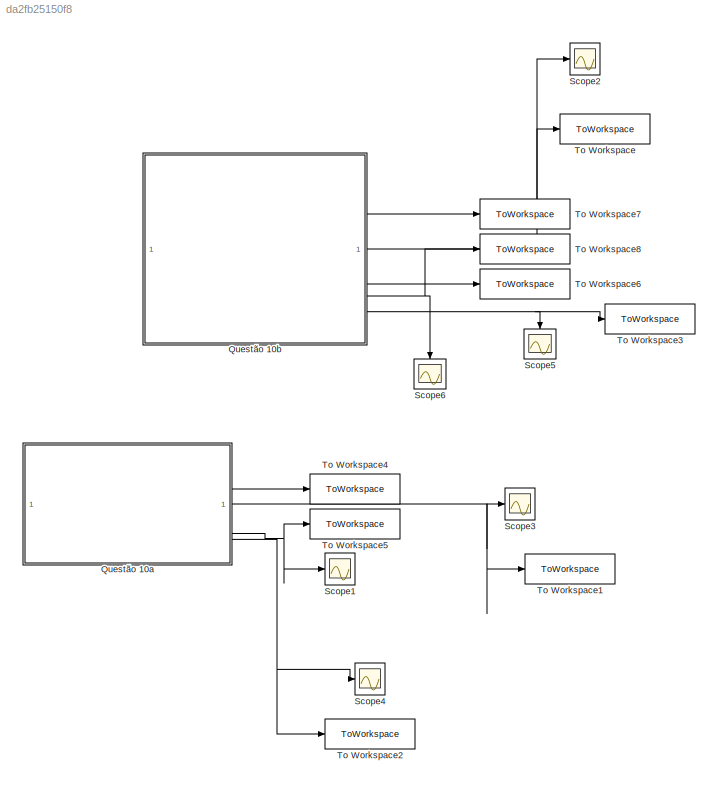
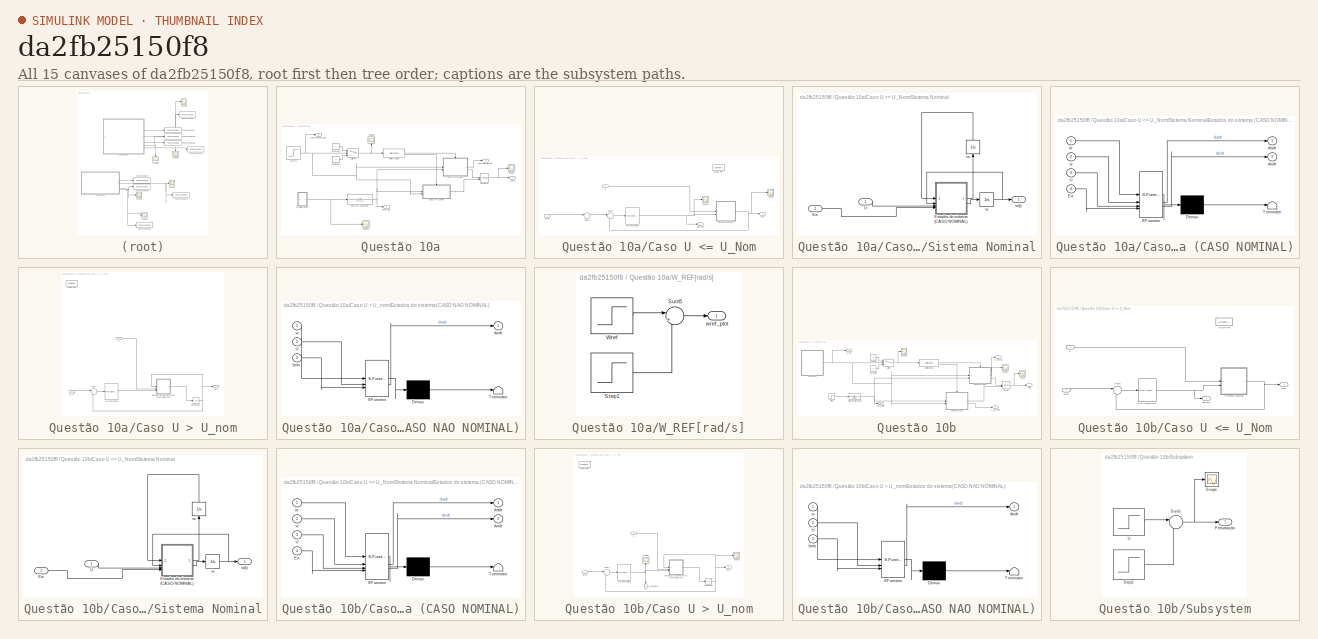
[diagram: thumbnail index - all 15 canvases of the model, root first then tree order]
MODEL slx_da2fb25150f8
KIND model
CONFIG AbsTol = auto
CONFIG EnableMultiTasking = off
CONFIG FixedStep = auto
CONFIG MaxStep = auto
CONFIG MinStep = auto
CONFIG RelTol = 1e-3
CONFIG SampleTimeConstraint = Unconstrained
CONFIG SolverName = VariableStepAuto
CONFIG StartTime = 0.0
CONFIG StopTime = 60
BLOCK [SubSystem] Questão 10a
BLOCK [SubSystem] Questão 10a/Caso U <= U_Nom
  TreatAsAtomicUnit = on
BLOCK [ActionPort] Questão 10a/Caso U <= U_Nom/Action Port
  ActionPortLabel = case [ 0 ]:
BLOCK [Outport] Questão 10a/Caso U <= U_Nom/Out1
  Port = 2
BLOCK [Reference] Questão 10a/Caso U <= U_Nom/PID Controller1  REF=slpidlib/PID Controller
  LibrarySourceBlock = simulink/Continuous/PID Controller
  SourceBlock = slpidlib/PID Controller
  SourceType = PID 1dof
BLOCK [Scope] Questão 10a/Caso U <= U_Nom/Scope
  Floating = off
  NumInputPorts = 1
  ScopeSpecificationString = Simulink.scopes.TimeScopeBlockCfg('CurrentConfiguration', extmgr.ConfigurationSet(extmgr.Configuration('Core','General UI',true),extmgr.Configuration('Core','Source UI',true),extmgr.Configuration('Sources','WiredSimulink',true,'DataLoggingVariableName','ScopeData2'),extmgr.Configuration('Visuals','Time Domain',true,'SerializedDisplays',{struct('MinYLimReal','-0.1315','MaxYLimReal','1.18351','YLabe...<+1372ch>
BLOCK [Scope] Questão 10a/Caso U <= U_Nom/Scope1
  Floating = off
  NumInputPorts = 1
  ScopeSpecificationString = Simulink.scopes.TimeScopeBlockCfg('CurrentConfiguration', extmgr.ConfigurationSet(extmgr.Configuration('Core','General UI',true),extmgr.Configuration('Core','Source UI',true),extmgr.Configuration('Sources','WiredSimulink',true,'DataLoggingVariableName','ScopeData3'),extmgr.Configuration('Visuals','Time Domain',true,'SerializedDisplays',{struct('MinYLimReal','-204.63112','MaxYLimReal','1841.68008',...<+1392ch>
BLOCK [SubSystem] Questão 10a/Caso U <= U_Nom/Sistema Nominal
BLOCK [Inport] Questão 10a/Caso U <= U_Nom/Sistema Nominal/Ea
  Port = 2
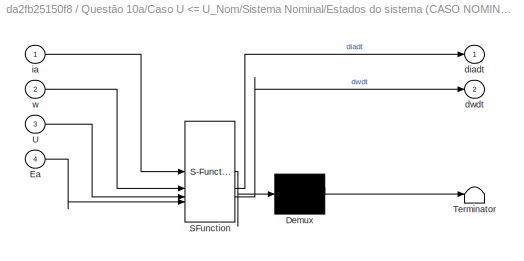
BLOCK [SubSystem] Questão 10a/Caso U <= U_Nom/Sistema Nominal/Estados do sistema (CASO NOMINAL)
  ErrorFcn = Stateflow.Translate.translate
  LibrarySourceBlock = simulink/User-Defined\nFunctions/MATLAB Function
  PermitHierarchicalResolution = ExplicitOnly
  SFBlockType = MATLAB Function
  TreatAsAtomicUnit = on
BLOCK [Demux] Questão 10a/Caso U <= U_Nom/Sistema Nominal/Estados do sistema (CASO NOMINAL)/ Demux 
  Outputs = 1
BLOCK [S-Function] Questão 10a/Caso U <= U_Nom/Sistema Nominal/Estados do sistema (CASO NOMINAL)/ SFunction 
  EnableBusSupport = on
  FunctionName = sf_sfun
  Parameters = A,Cpmax0,J,La,Ra,b,kv,rho
  PortCounts = [4 3]
  SFcnIsStateOwnerBlock = off
  SFunctionDeploymentMode = off
  Tag = Stateflow S-Function 6
BLOCK [Terminator] Questão 10a/Caso U <= U_Nom/Sistema Nominal/Estados do sistema (CASO NOMINAL)/ Terminator 
BLOCK [Inport] Questão 10a/Caso U <= U_Nom/Sistema Nominal/Estados do sistema (CASO NOMINAL)/Ea
  Port = 4
BLOCK [Inport] Questão 10a/Caso U <= U_Nom/Sistema Nominal/Estados do sistema (CASO NOMINAL)/U
  Port = 3
BLOCK [Outport] Questão 10a/Caso U <= U_Nom/Sistema Nominal/Estados do sistema (CASO NOMINAL)/diadt
BLOCK [Outport] Questão 10a/Caso U <= U_Nom/Sistema Nominal/Estados do sistema (CASO NOMINAL)/dwdt
  Port = 2
BLOCK [Inport] Questão 10a/Caso U <= U_Nom/Sistema Nominal/Estados do sistema (CASO NOMINAL)/ia
BLOCK [Inport] Questão 10a/Caso U <= U_Nom/Sistema Nominal/Estados do sistema (CASO NOMINAL)/w
  Port = 2
BLOCK [Inport] Questão 10a/Caso U <= U_Nom/Sistema Nominal/U
BLOCK [Integrator] Questão 10a/Caso U <= U_Nom/Sistema Nominal/ia
  InitialCondition = 1
  NameLocation = right
BLOCK [Integrator] Questão 10a/Caso U <= U_Nom/Sistema Nominal/w
  InitialCondition = 0.000000000000000000001
BLOCK [Outport] Questão 10a/Caso U <= U_Nom/Sistema Nominal/w(t)
BLOCK [Sum] Questão 10a/Caso U <= U_Nom/Sum2
  Inputs = |++
BLOCK [Sum] Questão 10a/Caso U <= U_Nom/Sum3
  Inputs = |+-
BLOCK [Inport] Questão 10a/Caso U <= U_Nom/U
BLOCK [Inport] Questão 10a/Caso U <= U_Nom/Wref
  Port = 2
BLOCK [Outport] Questão 10a/Caso U <= U_Nom/controle
BLOCK [SubSystem] Questão 10a/Caso U > U_nom
  TreatAsAtomicUnit = on
BLOCK [ActionPort] Questão 10a/Caso U > U_nom/Action Port
  ActionPortLabel = case [ 1 ]:
BLOCK [SubSystem] Questão 10a/Caso U > U_nom/Estados do sistema(CASO NAO NOMINAL)
  ErrorFcn = Stateflow.Translate.translate
  LibrarySourceBlock = simulink/User-Defined\nFunctions/MATLAB Function
  PermitHierarchicalResolution = ExplicitOnly
  SFBlockType = MATLAB Function
  TreatAsAtomicUnit = on
BLOCK [Demux] Questão 10a/Caso U > U_nom/Estados do sistema(CASO NAO NOMINAL)/ Demux 
  Outputs = 1
BLOCK [S-Function] Questão 10a/Caso U > U_nom/Estados do sistema(CASO NAO NOMINAL)/ SFunction 
  EnableBusSupport = on
  FunctionName = sf_sfun
  Parameters = A,J,b,ia_nom,kv,lambdaopt,rho
  PortCounts = [3 2]
  SFcnIsStateOwnerBlock = off
  SFunctionDeploymentMode = off
  Tag = Stateflow S-Function 7
BLOCK [Terminator] Questão 10a/Caso U > U_nom/Estados do sistema(CASO NAO NOMINAL)/ Terminator 
BLOCK [Inport] Questão 10a/Caso U > U_nom/Estados do sistema(CASO NAO NOMINAL)/U
  Port = 2
BLOCK [Inport] Questão 10a/Caso U > U_nom/Estados do sistema(CASO NAO NOMINAL)/beta
  Port = 3
BLOCK [Outport] Questão 10a/Caso U > U_nom/Estados do sistema(CASO NAO NOMINAL)/dwdt
BLOCK [Inport] Questão 10a/Caso U > U_nom/Estados do sistema(CASO NAO NOMINAL)/w
BLOCK [Outport] Questão 10a/Caso U > U_nom/Out1
BLOCK [Reference] Questão 10a/Caso U > U_nom/PID Controller2  REF=slpidlib/PID Controller
  LibrarySourceBlock = simulink/Continuous/PID Controller
  SourceBlock = slpidlib/PID Controller
  SourceType = PID 1dof
BLOCK [Sum] Questão 10a/Caso U > U_nom/Sum1
  Inputs = |+-
BLOCK [Inport] Questão 10a/Caso U > U_nom/U
  Port = 2
BLOCK [Inport] Questão 10a/Caso U > U_nom/Wref
BLOCK [Integrator] Questão 10a/Caso U > U_nom/integrador
  InitialCondition = w_nom
BLOCK [Constant] Questão 10a/Constant1
BLOCK [Constant] Questão 10a/Constant2
  Value = 0
BLOCK [TransferFcn] Questão 10a/Filtro de referência
  Denominator = [0.9 1]
BLOCK [Outport] Questão 10a/Out2
BLOCK [Scope] Questão 10a/Scope
  Floating = off
  NumInputPorts = 1
  ScopeSpecificationString = Simulink.scopes.TimeScopeBlockCfg('CurrentConfiguration', extmgr.ConfigurationSet(extmgr.Configuration('Core','General UI',true),extmgr.Configuration('Core','Source UI',true),extmgr.Configuration('Sources','WiredSimulink',true,'DataLoggingVariableName','ScopeData6'),extmgr.Configuration('Visuals','Time Domain',true,'SerializedDisplays',{struct('MinYLimReal','-0.1315','MaxYLimReal','1.18351','YLabe...<+1365ch>
BLOCK [Scope] Questão 10a/Scope1
  Floating = off
  NumInputPorts = 1
  ScopeSpecificationString = Simulink.scopes.TimeScopeBlockCfg('CurrentConfiguration', extmgr.ConfigurationSet(extmgr.Configuration('Core','General UI',true),extmgr.Configuration('Core','Source UI',true),extmgr.Configuration('Sources','WiredSimulink',true,'DataLoggingVariableName','ScopeData6'),extmgr.Configuration('Visuals','Time Domain',true,'SerializedDisplays',{struct('MinYLimReal','0.46025','MaxYLimReal','1.11775','YLabe...<+1431ch>
BLOCK [Scope] Questão 10a/Scope3
  Floating = off
  NameLocation = right
  NumInputPorts = 1
  ScopeSpecificationString = Simulink.scopes.TimeScopeBlockCfg('CurrentConfiguration', extmgr.ConfigurationSet(extmgr.Configuration('Core','General UI',true),extmgr.Configuration('Core','Source UI',true),extmgr.Configuration('Sources','WiredSimulink',true,'DataLoggingVariableName','ScopeData1'),extmgr.Configuration('Visuals','Time Domain',true,'SerializedDisplays',{struct('MinYLimReal','-1.00000','MaxYLimReal','1.00000','YLab...<+1429ch>
BLOCK [Switch] Questão 10a/Switch
  Criteria = u2 > Threshold
  InputSameDT = off
  SaturateOnIntegerOverflow = off
  Threshold = U_nom
BLOCK [SwitchCase] Questão 10a/Switch Case 
  CaseConditions = {0, [1]}
  ShowDefaultCase = off
BLOCK [Step] Questão 10a/U[m//s]
  After = U_nom
  Before = U_nom
  SampleTime = 0
  Time = 50
BLOCK [SubSystem] Questão 10a/W_REF[rad//s]
BLOCK [Step] Questão 10a/W_REF[rad//s]/Step1
  After = w_nom/2
  SampleTime = 0
  Time = 40
BLOCK [Sum] Questão 10a/W_REF[rad//s]/Sum5
  Inputs = |++
BLOCK [Step] Questão 10a/W_REF[rad//s]/Wref
  After = w_nom/2
  Before = w_nom
  SampleTime = 0
  Time = 20
BLOCK [Outport] Questão 10a/W_REF[rad//s]/wref_plot
BLOCK [Outport] Questão 10a/controle_plot10a
  Port = 3
BLOCK [Outport] Questão 10a/perturbação_10a
  Port = 2
BLOCK [Merge] Questão 10a/w[rad//s]
BLOCK [Outport] Questão 10a/wref_plot
  Port = 4
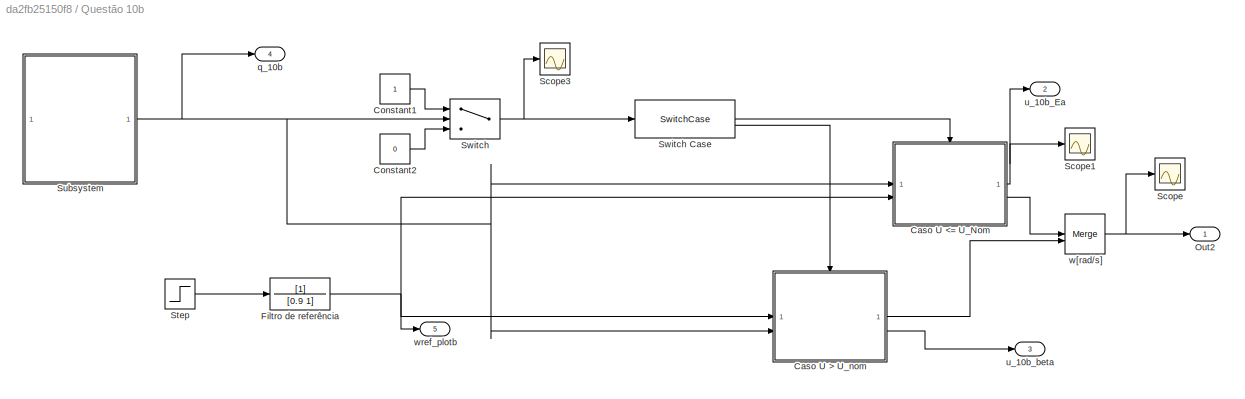
BLOCK [SubSystem] Questão 10b
BLOCK [SubSystem] Questão 10b/Caso U <= U_Nom
  TreatAsAtomicUnit = on
BLOCK [ActionPort] Questão 10b/Caso U <= U_Nom/Action Port
  ActionPortLabel = case [ 0 ]:
BLOCK [Outport] Questão 10b/Caso U <= U_Nom/Out1
  Port = 2
BLOCK [Reference] Questão 10b/Caso U <= U_Nom/PID Controller1  REF=slpidlib/PID Controller
  LibrarySourceBlock = simulink/Continuous/PID Controller
  SourceBlock = slpidlib/PID Controller
  SourceType = PID 1dof
BLOCK [SubSystem] Questão 10b/Caso U <= U_Nom/Sistema Nominal
BLOCK [Inport] Questão 10b/Caso U <= U_Nom/Sistema Nominal/Ea
  Port = 2
BLOCK [SubSystem] Questão 10b/Caso U <= U_Nom/Sistema Nominal/Estados do sistema (CASO NOMINAL)
  ErrorFcn = Stateflow.Translate.translate
  LibrarySourceBlock = simulink/User-Defined\nFunctions/MATLAB Function
  PermitHierarchicalResolution = ExplicitOnly
  SFBlockType = MATLAB Function
  TreatAsAtomicUnit = on
BLOCK [Demux] Questão 10b/Caso U <= U_Nom/Sistema Nominal/Estados do sistema (CASO NOMINAL)/ Demux 
  Outputs = 1
BLOCK [S-Function] Questão 10b/Caso U <= U_Nom/Sistema Nominal/Estados do sistema (CASO NOMINAL)/ SFunction 
  EnableBusSupport = on
  FunctionName = sf_sfun
  Parameters = A,Cpmax0,J,La,Ra,b,kv,rho
  PortCounts = [4 3]
  SFcnIsStateOwnerBlock = off
  SFunctionDeploymentMode = off
  Tag = Stateflow S-Function 3
BLOCK [Terminator] Questão 10b/Caso U <= U_Nom/Sistema Nominal/Estados do sistema (CASO NOMINAL)/ Terminator 
BLOCK [Inport] Questão 10b/Caso U <= U_Nom/Sistema Nominal/Estados do sistema (CASO NOMINAL)/Ea
  Port = 4
BLOCK [Inport] Questão 10b/Caso U <= U_Nom/Sistema Nominal/Estados do sistema (CASO NOMINAL)/U
  Port = 3
BLOCK [Outport] Questão 10b/Caso U <= U_Nom/Sistema Nominal/Estados do sistema (CASO NOMINAL)/diadt
BLOCK [Outport] Questão 10b/Caso U <= U_Nom/Sistema Nominal/Estados do sistema (CASO NOMINAL)/dwdt
  Port = 2
BLOCK [Inport] Questão 10b/Caso U <= U_Nom/Sistema Nominal/Estados do sistema (CASO NOMINAL)/ia
BLOCK [Inport] Questão 10b/Caso U <= U_Nom/Sistema Nominal/Estados do sistema (CASO NOMINAL)/w
  Port = 2
BLOCK [Inport] Questão 10b/Caso U <= U_Nom/Sistema Nominal/U
BLOCK [Integrator] Questão 10b/Caso U <= U_Nom/Sistema Nominal/ia
  InitialCondition = 1
  NameLocation = right
BLOCK [Integrator] Questão 10b/Caso U <= U_Nom/Sistema Nominal/w
  InitialCondition = 0.000000000000000000001
BLOCK [Outport] Questão 10b/Caso U <= U_Nom/Sistema Nominal/w(t)
BLOCK [Sum] Questão 10b/Caso U <= U_Nom/Sum3
  Inputs = |+-
BLOCK [Inport] Questão 10b/Caso U <= U_Nom/U
BLOCK [Inport] Questão 10b/Caso U <= U_Nom/Wref
  Port = 2
BLOCK [Outport] Questão 10b/Caso U <= U_Nom/controle
BLOCK [SubSystem] Questão 10b/Caso U > U_nom
  TreatAsAtomicUnit = on
BLOCK [ActionPort] Questão 10b/Caso U > U_nom/Action Port
  ActionPortLabel = case [ 1 ]:
BLOCK [SubSystem] Questão 10b/Caso U > U_nom/Estados do sistema(CASO NAO NOMINAL)
  ErrorFcn = Stateflow.Translate.translate
  LibrarySourceBlock = simulink/User-Defined\nFunctions/MATLAB Function
  PermitHierarchicalResolution = ExplicitOnly
  SFBlockType = MATLAB Function
  TreatAsAtomicUnit = on
BLOCK [Demux] Questão 10b/Caso U > U_nom/Estados do sistema(CASO NAO NOMINAL)/ Demux 
  Outputs = 1
BLOCK [S-Function] Questão 10b/Caso U > U_nom/Estados do sistema(CASO NAO NOMINAL)/ SFunction 
  EnableBusSupport = on
  FunctionName = sf_sfun
  Parameters = A,J,b,ia_nom,kv,lambdaopt,rho
  PortCounts = [3 2]
  SFcnIsStateOwnerBlock = off
  SFunctionDeploymentMode = off
  Tag = Stateflow S-Function 5
BLOCK [Terminator] Questão 10b/Caso U > U_nom/Estados do sistema(CASO NAO NOMINAL)/ Terminator 
BLOCK [Inport] Questão 10b/Caso U > U_nom/Estados do sistema(CASO NAO NOMINAL)/U
  Port = 2
BLOCK [Inport] Questão 10b/Caso U > U_nom/Estados do sistema(CASO NAO NOMINAL)/beta
  Port = 3
BLOCK [Outport] Questão 10b/Caso U > U_nom/Estados do sistema(CASO NAO NOMINAL)/dwdt
BLOCK [Inport] Questão 10b/Caso U > U_nom/Estados do sistema(CASO NAO NOMINAL)/w
BLOCK [Outport] Questão 10b/Caso U > U_nom/Out1
BLOCK [Reference] Questão 10b/Caso U > U_nom/PID Controller2  REF=slpidlib/PID Controller
  LibrarySourceBlock = simulink/Continuous/PID Controller
  SourceBlock = slpidlib/PID Controller
  SourceType = PID 1dof
BLOCK [Scope] Questão 10b/Caso U > U_nom/Scope
  Floating = off
  NumInputPorts = 1
  ScopeSpecificationString = Simulink.scopes.TimeScopeBlockCfg('CurrentConfiguration', extmgr.ConfigurationSet(extmgr.Configuration('Core','General UI',true),extmgr.Configuration('Core','Source UI',true),extmgr.Configuration('Sources','WiredSimulink',true,'DataLoggingVariableName','ScopeData4'),extmgr.Configuration('Visuals','Time Domain',true,'SerializedDisplays',{struct('MinYLimReal','0.97302','MaxYLimReal','1.33436','YLabe...<+1367ch>
BLOCK [Scope] Questão 10b/Caso U > U_nom/Scope1
  Floating = off
  NameLocation = right
  NumInputPorts = 1
  ScopeSpecificationString = Simulink.scopes.TimeScopeBlockCfg('CurrentConfiguration', extmgr.ConfigurationSet(extmgr.Configuration('Core','General UI',true),extmgr.Configuration('Core','Source UI',true),extmgr.Configuration('Sources','WiredSimulink',true,'DataLoggingVariableName','ScopeData5'),extmgr.Configuration('Visuals','Time Domain',true,'SerializedDisplays',{struct('MinYLimReal','-0.036','MaxYLimReal','0.32403','YLabel...<+1689ch>
BLOCK [Sum] Questão 10b/Caso U > U_nom/Sum1
  Inputs = |+-
BLOCK [Inport] Questão 10b/Caso U > U_nom/U
  Port = 2
BLOCK [Inport] Questão 10b/Caso U > U_nom/Wref
BLOCK [Integrator] Questão 10b/Caso U > U_nom/integrador
  InitialCondition = w_nom
BLOCK [Outport] Questão 10b/Caso U > U_nom/u_10b_beta
  NameLocation = left
  Port = 2
BLOCK [Constant] Questão 10b/Constant1
BLOCK [Constant] Questão 10b/Constant2
  Value = 0
BLOCK [TransferFcn] Questão 10b/Filtro de referência
  Denominator = [0.9 1]
BLOCK [Outport] Questão 10b/Out2
BLOCK [Scope] Questão 10b/Scope
  Floating = off
  NumInputPorts = 1
  ScopeSpecificationString = Simulink.scopes.TimeScopeBlockCfg('CurrentConfiguration', extmgr.ConfigurationSet(extmgr.Configuration('Core','General UI',true),extmgr.Configuration('Core','Source UI',true),extmgr.Configuration('Sources','WiredSimulink',true,'DataLoggingVariableName','ScopeData4'),extmgr.Configuration('Visuals','Time Domain',true,'SerializedDisplays',{struct('MinYLimReal','-0.1623','MaxYLimReal','1.46074','YLabe...<+1365ch>
BLOCK [Scope] Questão 10b/Scope1
  Floating = off
  NumInputPorts = 1
  ScopeSpecificationString = Simulink.scopes.TimeScopeBlockCfg('CurrentConfiguration', extmgr.ConfigurationSet(extmgr.Configuration('Core','General UI',true),extmgr.Configuration('Core','Source UI',true),extmgr.Configuration('Sources','WiredSimulink',true,'DataLoggingVariableName','ScopeData4'),extmgr.Configuration('Visuals','Time Domain',true,'SerializedDisplays',{struct('MinYLimReal','-250.00000','MaxYLimReal','2250.00000',...<+1767ch>
BLOCK [Scope] Questão 10b/Scope3
  Floating = off
  NumInputPorts = 1
  ScopeSpecificationString = Simulink.scopes.TimeScopeBlockCfg('CurrentConfiguration', extmgr.ConfigurationSet(extmgr.Configuration('Core','General UI',true),extmgr.Configuration('Core','Source UI',true),extmgr.Configuration('Sources','WiredSimulink',true,'DataLoggingVariableName','ScopeData3'),extmgr.Configuration('Visuals','Time Domain',true,'SerializedDisplays',{struct('MinYLimReal','-0.125','MaxYLimReal','1.125','YLabelRe...<+1417ch>
BLOCK [Step] Questão 10b/Step
  After = w_nom
  Before = w_nom
  SampleTime = 0
  Time = 10
BLOCK [SubSystem] Questão 10b/Subsystem
BLOCK [Outport] Questão 10b/Subsystem/Perturbação
BLOCK [Scope] Questão 10b/Subsystem/Scope
  Floating = off
  NumInputPorts = 1
  ScopeSpecificationString = Simulink.scopes.TimeScopeBlockCfg('CurrentConfiguration', extmgr.ConfigurationSet(extmgr.Configuration('Core','General UI',true),extmgr.Configuration('Core','Source UI',true),extmgr.Configuration('Sources','WiredSimulink',true,'DataLoggingVariableName','ScopeData3'),extmgr.Configuration('Visuals','Time Domain',true,'SerializedDisplays',{struct('MinYLimReal','9.66529','MaxYLimReal','16.10882','YLab...<+1365ch>
BLOCK [Step] Questão 10b/Subsystem/Step1
  After = -1*U_nom/2
  SampleTime = 0
  Time = 40
BLOCK [Sum] Questão 10b/Subsystem/Sum5
  Inputs = |++
BLOCK [Step] Questão 10b/Subsystem/U
  After = U_nom*1.5
  Before = U_nom
  SampleTime = 0
  Time = 20
BLOCK [Switch] Questão 10b/Switch
  Criteria = u2 > Threshold
  InputSameDT = off
  SaturateOnIntegerOverflow = off
  Threshold = U_nom
BLOCK [SwitchCase] Questão 10b/Switch Case
  CaseConditions = {0, [1]}
  ShowDefaultCase = off
BLOCK [Outport] Questão 10b/q_10b
  Port = 4
BLOCK [Outport] Questão 10b/u_10b_Ea
  Port = 2
BLOCK [Outport] Questão 10b/u_10b_beta
  Port = 3
BLOCK [Merge] Questão 10b/w[rad//s]
BLOCK [Outport] Questão 10b/wref_plotb
  Port = 5
BLOCK [Scope] Scope1
  Floating = off
  NumInputPorts = 1
  ScopeSpecificationString = Simulink.scopes.TimeScopeBlockCfg('CurrentConfiguration', extmgr.ConfigurationSet(extmgr.Configuration('Core','General UI',true,'FigureColor',[1 1 1]),extmgr.Configuration('Core','Source UI',true),extmgr.Configuration('Sources','WiredSimulink',true,'DataLoggingVariableName','ScopeData1'),extmgr.Configuration('Visuals','Time Domain',true,'SerializedDisplays',{struct('MinYLimReal','-204.63112','MaxY...<+1711ch>
BLOCK [Scope] Scope2
  Floating = off
  NameLocation = top
  NumInputPorts = 1
  ScopeSpecificationString = Simulink.scopes.TimeScopeBlockCfg('CurrentConfiguration', extmgr.ConfigurationSet(extmgr.Configuration('Core','General UI',true,'FigureColor',[1 1 1]),extmgr.Configuration('Core','Source UI',true),extmgr.Configuration('Sources','WiredSimulink',true,'DataLoggingVariableName','ScopeData2'),extmgr.Configuration('Visuals','Time Domain',true,'SerializedDisplays',{struct('MinYLimReal','-0.1623','MaxYLim...<+1691ch>
BLOCK [Scope] Scope3
  Floating = off
  NumInputPorts = 1
  ScopeSpecificationString = Simulink.scopes.TimeScopeBlockCfg('CurrentConfiguration', extmgr.ConfigurationSet(extmgr.Configuration('Core','General UI',true,'FigureColor',[1 1 1]),extmgr.Configuration('Core','Source UI',true),extmgr.Configuration('Sources','WiredSimulink',true,'DataLoggingVariableName','ScopeData2'),extmgr.Configuration('Visuals','Time Domain',true,'SerializedDisplays',{struct('MinYLimReal','-0.1315','MaxYLim...<+1691ch>
BLOCK [Scope] Scope4
  Floating = off
  NumInputPorts = 1
  ScopeSpecificationString = Simulink.scopes.TimeScopeBlockCfg('CurrentConfiguration', extmgr.ConfigurationSet(extmgr.Configuration('Core','General UI',true,'FigureColor',[1 1 1]),extmgr.Configuration('Core','Source UI',true),extmgr.Configuration('Sources','WiredSimulink',true,'DataLoggingVariableName','ScopeData5'),extmgr.Configuration('Visuals','Time Domain',true,'SerializedDisplays',{struct('MinYLimReal','0.46025','MaxYLim...<+1691ch>
BLOCK [Scope] Scope5
  Floating = off
  NameLocation = left
  NumInputPorts = 1
  ScopeSpecificationString = Simulink.scopes.TimeScopeBlockCfg('CurrentConfiguration', extmgr.ConfigurationSet(extmgr.Configuration('Core','General UI',true,'FigureColor',[1 1 1]),extmgr.Configuration('Core','Source UI',true),extmgr.Configuration('Sources','WiredSimulink',true,'DataLoggingVariableName','ScopeData7'),extmgr.Configuration('Visuals','Time Domain',true,'SerializedDisplays',{struct('MinYLimReal','-0.1315','MaxYLim...<+1691ch>
BLOCK [Scope] Scope6
  Floating = off
  NameLocation = left
  NumInputPorts = 1
  ScopeSpecificationString = Simulink.scopes.TimeScopeBlockCfg('CurrentConfiguration', extmgr.ConfigurationSet(extmgr.Configuration('Core','General UI',true,'FigureColor',[1 1 1]),extmgr.Configuration('Core','Source UI',true),extmgr.Configuration('Sources','WiredSimulink',true,'DataLoggingVariableName','ScopeData1'),extmgr.Configuration('Visuals','Time Domain',true,'SerializedDisplays',{struct('MinYLimReal','-0.036','MaxYLimR...<+1689ch>
BLOCK [ToWorkspace] To Workspace
  FixptAsFi = on
  MaxDataPoints = inf
  NameLocation = top
  SampleTime = -1
  Save2DSignal = 2-D array (concatenate along first dimension)
  VariableName = questao10b
BLOCK [ToWorkspace] To Workspace1
  FixptAsFi = on
  MaxDataPoints = inf
  SampleTime = -1
  Save2DSignal = 2-D array (concatenate along first dimension)
  VariableName = questao10a
BLOCK [ToWorkspace] To Workspace2
  FixptAsFi = on
  MaxDataPoints = inf
  SampleTime = -1
  Save2DSignal = 2-D array (concatenate along first dimension)
  VariableName = wref_10a
BLOCK [ToWorkspace] To Workspace3
  FixptAsFi = on
  MaxDataPoints = inf
  SampleTime = -1
  Save2DSignal = 2-D array (concatenate along first dimension)
  VariableName = w_ref10b
BLOCK [ToWorkspace] To Workspace4
  FixptAsFi = on
  MaxDataPoints = inf
  SampleTime = -1
  Save2DSignal = 2-D array (concatenate along first dimension)
  VariableName = perturbacao10a
BLOCK [ToWorkspace] To Workspace5
  FixptAsFi = on
  MaxDataPoints = inf
  SampleTime = -1
  Save2DSignal = 2-D array (concatenate along first dimension)
  VariableName = controle10a
BLOCK [ToWorkspace] To Workspace6
  FixptAsFi = on
  MaxDataPoints = inf
  SampleTime = -1
  Save2DSignal = 2-D array (concatenate along first dimension)
  VariableName = perturbacao10b
BLOCK [ToWorkspace] To Workspace7
  FixptAsFi = on
  MaxDataPoints = inf
  SampleTime = -1
  Save2DSignal = 2-D array (concatenate along first dimension)
  VariableName = Ea10b
BLOCK [ToWorkspace] To Workspace8
  FixptAsFi = on
  MaxDataPoints = inf
  SampleTime = -1
  Save2DSignal = 2-D array (concatenate along first dimension)
  VariableName = beta10b
NET Questão 10a/Caso U <= U_Nom/PID Controller1:1 -> Questão 10a/Caso U <= U_Nom/Scope1:1, Questão 10a/Caso U <= U_Nom/Sistema Nominal:2, Questão 10a/Caso U <= U_Nom/controle:1
LINE Questão 10a/Caso U <= U_Nom/Sistema Nominal/Ea:1 -> Questão 10a/Caso U <= U_Nom/Sistema Nominal/Estados do sistema (CASO NOMINAL):4
LINE Questão 10a/Caso U <= U_Nom/Sistema Nominal/Estados do sistema (CASO NOMINAL):1 -> Questão 10a/Caso U <= U_Nom/Sistema Nominal/ia:1
LINE Questão 10a/Caso U <= U_Nom/Sistema Nominal/Estados do sistema (CASO NOMINAL):2 -> Questão 10a/Caso U <= U_Nom/Sistema Nominal/w:1
LINE Questão 10a/Caso U <= U_Nom/Sistema Nominal/U:1 -> Questão 10a/Caso U <= U_Nom/Sistema Nominal/Estados do sistema (CASO NOMINAL):3
LINE Questão 10a/Caso U <= U_Nom/Sistema Nominal/ia:1 -> Questão 10a/Caso U <= U_Nom/Sistema Nominal/Estados do sistema (CASO NOMINAL):1
NET Questão 10a/Caso U <= U_Nom/Sistema Nominal/w:1 -> Questão 10a/Caso U <= U_Nom/Sistema Nominal/Estados do sistema (CASO NOMINAL):2, Questão 10a/Caso U <= U_Nom/Sistema Nominal/w(t):1
NET Questão 10a/Caso U <= U_Nom/Sistema Nominal:1 -> Questão 10a/Caso U <= U_Nom/Out1:1, Questão 10a/Caso U <= U_Nom/Scope:1, Questão 10a/Caso U <= U_Nom/Sum3:2
LINE Questão 10a/Caso U <= U_Nom/Sum2:1 -> Questão 10a/Caso U <= U_Nom/Sum3:1
LINE Questão 10a/Caso U <= U_Nom/Sum3:1 -> Questão 10a/Caso U <= U_Nom/PID Controller1:1
LINE Questão 10a/Caso U <= U_Nom/U:1 -> Questão 10a/Caso U <= U_Nom/Sistema Nominal:1
LINE Questão 10a/Caso U <= U_Nom/Wref:1 -> Questão 10a/Caso U <= U_Nom/Sum2:1
LINE Questão 10a/Caso U <= U_Nom:1 -> Questão 10a/controle_plot10a:1
LINE Questão 10a/Caso U <= U_Nom:2 -> Questão 10a/w[rad//s]:1
LINE Questão 10a/Caso U > U_nom/Estados do sistema(CASO NAO NOMINAL):1 -> Questão 10a/Caso U > U_nom/integrador:1
LINE Questão 10a/Caso U > U_nom/PID Controller2:1 -> Questão 10a/Caso U > U_nom/Estados do sistema(CASO NAO NOMINAL):3
LINE Questão 10a/Caso U > U_nom/Sum1:1 -> Questão 10a/Caso U > U_nom/PID Controller2:1
LINE Questão 10a/Caso U > U_nom/U:1 -> Questão 10a/Caso U > U_nom/Estados do sistema(CASO NAO NOMINAL):2
LINE Questão 10a/Caso U > U_nom/Wref:1 -> Questão 10a/Caso U > U_nom/Sum1:1
NET Questão 10a/Caso U > U_nom/integrador:1 -> Questão 10a/Caso U > U_nom/Estados do sistema(CASO NAO NOMINAL):1, Questão 10a/Caso U > U_nom/Out1:1, Questão 10a/Caso U > U_nom/Sum1:2
LINE Questão 10a/Caso U > U_nom:1 -> Questão 10a/w[rad//s]:2
LINE Questão 10a/Constant1:1 -> Questão 10a/Switch:1
LINE Questão 10a/Constant2:1 -> Questão 10a/Switch:3
NET Questão 10a/Filtro de referência:1 -> Questão 10a/Caso U <= U_Nom:2, Questão 10a/Caso U > U_nom:1, Questão 10a/wref_plot:1
LINE Questão 10a/Switch Case :1 -> Questão 10a/Caso U <= U_Nom:ifaction
LINE Questão 10a/Switch Case :2 -> Questão 10a/Caso U > U_nom:ifaction
NET Questão 10a/Switch:1 -> Questão 10a/Scope3:1, Questão 10a/Switch Case :1
NET Questão 10a/U[m//s]:1 -> Questão 10a/Caso U <= U_Nom:1, Questão 10a/Caso U > U_nom:2, Questão 10a/Switch:2, Questão 10a/perturbação_10a:1
LINE Questão 10a/W_REF[rad//s]/Step1:1 -> Questão 10a/W_REF[rad//s]/Sum5:2
LINE Questão 10a/W_REF[rad//s]/Sum5:1 -> Questão 10a/W_REF[rad//s]/wref_plot:1
LINE Questão 10a/W_REF[rad//s]/Wref:1 -> Questão 10a/W_REF[rad//s]/Sum5:1
NET Questão 10a/W_REF[rad//s]:1 -> Questão 10a/Filtro de referência:1, Questão 10a/Scope1:1
NET Questão 10a/w[rad//s]:1 -> Questão 10a/Out2:1, Questão 10a/Scope:1
NET Questão 10a:1 -> Scope3:1, To Workspace1:1
LINE Questão 10a:2 -> To Workspace4:1
NET Questão 10a:3 -> Scope1:1, To Workspace5:1
NET Questão 10a:4 -> Scope4:1, To Workspace2:1
NET Questão 10b/Caso U <= U_Nom/PID Controller1:1 -> Questão 10b/Caso U <= U_Nom/Sistema Nominal:2, Questão 10b/Caso U <= U_Nom/controle:1
LINE Questão 10b/Caso U <= U_Nom/Sistema Nominal/Ea:1 -> Questão 10b/Caso U <= U_Nom/Sistema Nominal/Estados do sistema (CASO NOMINAL):4
LINE Questão 10b/Caso U <= U_Nom/Sistema Nominal/Estados do sistema (CASO NOMINAL):1 -> Questão 10b/Caso U <= U_Nom/Sistema Nominal/ia:1
LINE Questão 10b/Caso U <= U_Nom/Sistema Nominal/Estados do sistema (CASO NOMINAL):2 -> Questão 10b/Caso U <= U_Nom/Sistema Nominal/w:1
LINE Questão 10b/Caso U <= U_Nom/Sistema Nominal/U:1 -> Questão 10b/Caso U <= U_Nom/Sistema Nominal/Estados do sistema (CASO NOMINAL):3
LINE Questão 10b/Caso U <= U_Nom/Sistema Nominal/ia:1 -> Questão 10b/Caso U <= U_Nom/Sistema Nominal/Estados do sistema (CASO NOMINAL):1
NET Questão 10b/Caso U <= U_Nom/Sistema Nominal/w:1 -> Questão 10b/Caso U <= U_Nom/Sistema Nominal/Estados do sistema (CASO NOMINAL):2, Questão 10b/Caso U <= U_Nom/Sistema Nominal/w(t):1
NET Questão 10b/Caso U <= U_Nom/Sistema Nominal:1 -> Questão 10b/Caso U <= U_Nom/Out1:1, Questão 10b/Caso U <= U_Nom/Sum3:2
LINE Questão 10b/Caso U <= U_Nom/Sum3:1 -> Questão 10b/Caso U <= U_Nom/PID Controller1:1
LINE Questão 10b/Caso U <= U_Nom/U:1 -> Questão 10b/Caso U <= U_Nom/Sistema Nominal:1
LINE Questão 10b/Caso U <= U_Nom/Wref:1 -> Questão 10b/Caso U <= U_Nom/Sum3:1
NET Questão 10b/Caso U <= U_Nom:1 -> Questão 10b/Scope1:1, Questão 10b/u_10b_Ea:1
LINE Questão 10b/Caso U <= U_Nom:2 -> Questão 10b/w[rad//s]:1
LINE Questão 10b/Caso U > U_nom/Estados do sistema(CASO NAO NOMINAL):1 -> Questão 10b/Caso U > U_nom/integrador:1
NET Questão 10b/Caso U > U_nom/PID Controller2:1 -> Questão 10b/Caso U > U_nom/Estados do sistema(CASO NAO NOMINAL):3, Questão 10b/Caso U > U_nom/Scope1:1, Questão 10b/Caso U > U_nom/u_10b_beta:1
LINE Questão 10b/Caso U > U_nom/Sum1:1 -> Questão 10b/Caso U > U_nom/PID Controller2:1
LINE Questão 10b/Caso U > U_nom/U:1 -> Questão 10b/Caso U > U_nom/Estados do sistema(CASO NAO NOMINAL):2
LINE Questão 10b/Caso U > U_nom/Wref:1 -> Questão 10b/Caso U > U_nom/Sum1:1
NET Questão 10b/Caso U > U_nom/integrador:1 -> Questão 10b/Caso U > U_nom/Estados do sistema(CASO NAO NOMINAL):1, Questão 10b/Caso U > U_nom/Out1:1, Questão 10b/Caso U > U_nom/Scope:1, Questão 10b/Caso U > U_nom/Sum1:2
LINE Questão 10b/Caso U > U_nom:1 -> Questão 10b/w[rad//s]:2
LINE Questão 10b/Caso U > U_nom:2 -> Questão 10b/u_10b_beta:1
LINE Questão 10b/Constant1:1 -> Questão 10b/Switch:1
LINE Questão 10b/Constant2:1 -> Questão 10b/Switch:3
NET Questão 10b/Filtro de referência:1 -> Questão 10b/Caso U <= U_Nom:2, Questão 10b/Caso U > U_nom:1, Questão 10b/wref_plotb:1
LINE Questão 10b/Step:1 -> Questão 10b/Filtro de referência:1
LINE Questão 10b/Subsystem/Step1:1 -> Questão 10b/Subsystem/Sum5:2
NET Questão 10b/Subsystem/Sum5:1 -> Questão 10b/Subsystem/Perturbação:1, Questão 10b/Subsystem/Scope:1
LINE Questão 10b/Subsystem/U:1 -> Questão 10b/Subsystem/Sum5:1
NET Questão 10b/Subsystem:1 -> Questão 10b/Caso U <= U_Nom:1, Questão 10b/Caso U > U_nom:2, Questão 10b/Switch:2, Questão 10b/q_10b:1
LINE Questão 10b/Switch Case:1 -> Questão 10b/Caso U <= U_Nom:ifaction
LINE Questão 10b/Switch Case:2 -> Questão 10b/Caso U > U_nom:ifaction
NET Questão 10b/Switch:1 -> Questão 10b/Scope3:1, Questão 10b/Switch Case:1
NET Questão 10b/w[rad//s]:1 -> Questão 10b/Out2:1, Questão 10b/Scope:1
NET Questão 10b:1 -> Scope2:1, To Workspace:1
LINE Questão 10b:2 -> To Workspace7:1
NET Questão 10b:3 -> Scope6:1, To Workspace8:1
LINE Questão 10b:4 -> To Workspace6:1
NET Questão 10b:5 -> Scope5:1, To Workspace3:1
note: NET lines group one-source signal fan-out (src -> all destinations, sorted); 1:1 wires keep LINE
CHART Questão 10b/Caso U <= U_Nom/Sistema Nominal/Estados do sistema (CASO NOMINAL) states=1 transitions=1
  STATE_LABEL 'eML_blk_kernel()'
  STATE_LABEL 'SCRIPT:\nfunction [diadt, dwdt] = fcn(ia, w, U, Ra, J, Cpmax0, A, b, kv, La, rho, Ea)\n\n\n\ndiadt = (1/La) * (kv*w - Ra*ia - Ea);\ndwdt = (1/J) * ((Cpmax0*0.5*rho*A*U^3)/w - b*w - kv*ia);\n'
CHART Questão 10b/Caso U > U_nom/Estados do sistema(CASO NAO NOMINAL) states=1 transitions=1
  STATE_LABEL 'eML_blk_kernel()'
  STATE_LABEL 'SCRIPT:\nfunction dwdt  = fcn(w, U, J, A, b, kv, rho, ia_nom, beta, lambdaopt)\n\n\nCp = (0.44 - 0.167*beta)*sin((pi*lambdaopt)/(15 - 0.3*beta)) - 0.16*lambdaopt*beta;\n\ndwdt = (1/J) * ((Cp*0.5*rho*A*U^3)/w - b*w - kv*ia_nom);\n\n\n'
CHART Questão 10a/Caso U <= U_Nom/Sistema Nominal/Estados do sistema (CASO NOMINAL) states=1 transitions=1
  STATE_LABEL 'eML_blk_kernel()'
  STATE_LABEL 'SCRIPT:\nfunction [diadt, dwdt] = fcn(ia, w, U, Ra, J, Cpmax0, A, b, kv, La, rho, Ea)\n\n\n\ndiadt = (1/La) * (kv*w - Ra*ia - Ea);\ndwdt = (1/J) * ((Cpmax0*0.5*rho*A*U^3)/w - b*w - kv*ia);\n'
CHART Questão 10a/Caso U > U_nom/Estados do sistema(CASO NAO NOMINAL) states=1 transitions=1
  STATE_LABEL 'eML_blk_kernel()'
  STATE_LABEL 'SCRIPT:\nfunction dwdt  = fcn(w, U, J, A, b, kv, rho, ia_nom, beta, lambdaopt)\n\n\nCp = (0.44 - 0.167*beta)*sin((pi*lambdaopt)/(15 - 0.3*beta)) - 0.16*lambdaopt*beta;\n\ndwdt = (1/J) * ((Cp*0.5*rho*A*U^3)/w - b*w - kv*ia_nom);\n\n\n'
CHART  states=0 transitions=0
CHART  states=0 transitions=0
CHART  states=0 transitions=0
CHART  states=0 transitions=0
